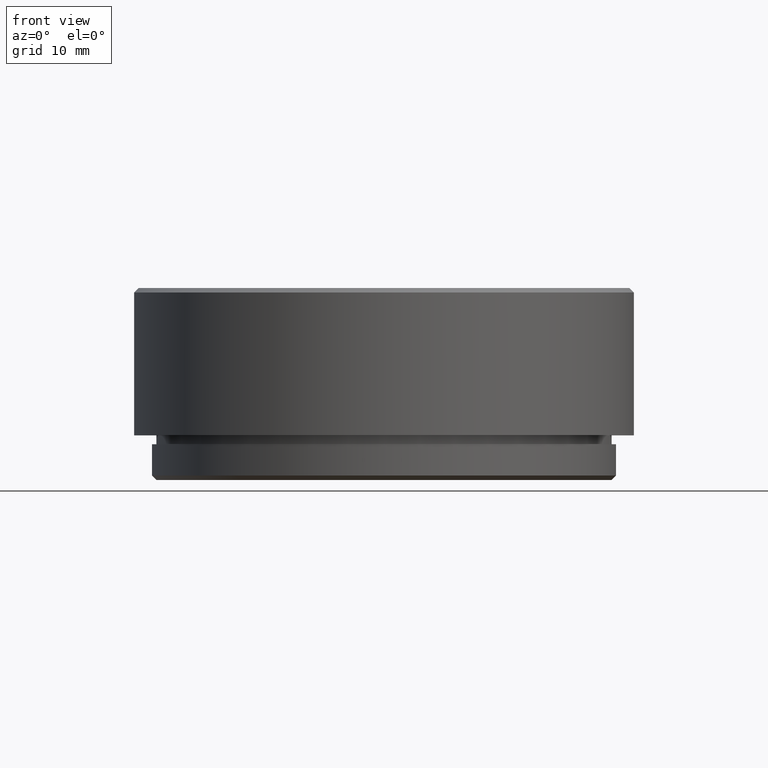
[diagram: clean part render]
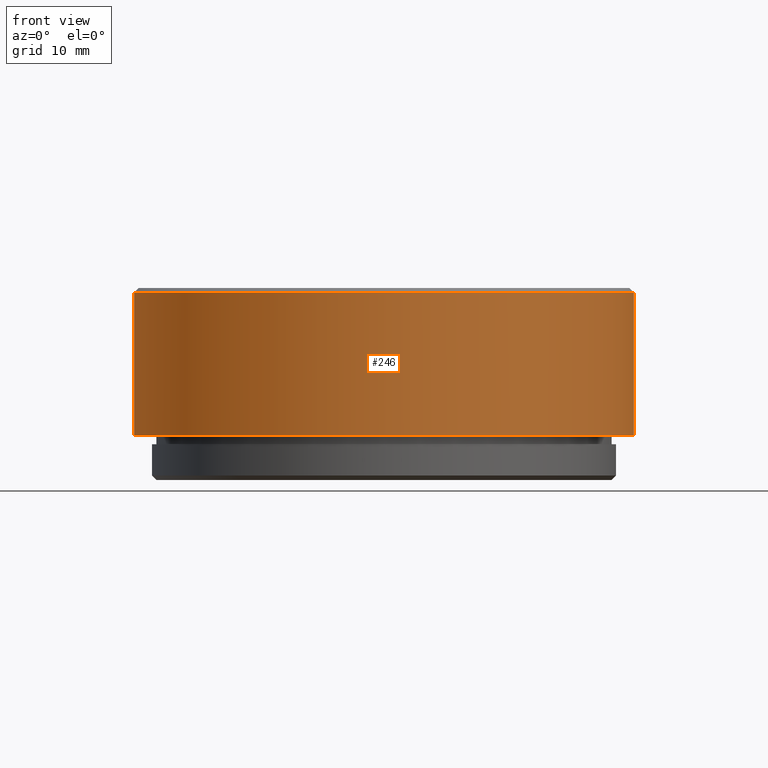
[diagram: same view with one face highlighted and labeled with its STEP entity id]
A machine part, front view. The second image highlights one B-rep face of the part: STEP entity #246.
In plain terms, the highlighted cylindrical surface (partial cylindrical patch) has radius 28 mm, axis along (-0, -0, -1).
Its self-contained STEP definition (entity closure, byte-faithful):
#26 = AXIS2_PLACEMENT_3D ( 'NONE', #687, #552, #951 ) ;
#38 = CARTESIAN_POINT ( 'NONE',  ( 28.00000000000000000, 3.429011037612589276E-15, 20.99999999999999289 ) ) ;
#40 = VECTOR ( 'NONE', #979, 1000.000000000000000 ) ;
#166 = DIRECTION ( 'NONE',  ( -1.000000000000000000, 0.000000000000000000, 0.000000000000000000 ) ) ;
#222 = CIRCLE ( 'NONE', #713, 28.00000000000000000 ) ;
#246 = ADVANCED_FACE ( 'NONE', ( #1272 ), #1014, .T. ) ;
#304 = EDGE_CURVE ( 'NONE', #1286, #1167, #810, .T. ) ;
#364 = DIRECTION ( 'NONE',  ( -0.000000000000000000, -0.000000000000000000, -1.000000000000000000 ) ) ;
#433 = EDGE_CURVE ( 'NONE', #1454, #1286, #1247, .T. ) ;
#496 = LINE ( 'NONE', #1612, #1303 ) ;
#534 = CARTESIAN_POINT ( 'NONE',  ( 28.00000000000000000, 3.429011037612589276E-15, 21.50000000000000000 ) ) ;
#537 = CARTESIAN_POINT ( 'NONE',  ( -28.00000000000000000, 0.000000000000000000, 20.99999999999999289 ) ) ;
#552 = DIRECTION ( 'NONE',  ( 0.000000000000000000, 0.000000000000000000, -1.000000000000000000 ) ) ;
#654 = ORIENTED_EDGE ( 'NONE', *, *, #433, .F. ) ;
#687 = CARTESIAN_POINT ( 'NONE',  ( 0.000000000000000000, 0.000000000000000000, 5.000000000000000000 ) ) ;
#713 = AXIS2_PLACEMENT_3D ( 'NONE', #832, #1626, #1608 ) ;
#810 = CIRCLE ( 'NONE', #26, 28.00000000000000000 ) ;
#820 = ORIENTED_EDGE ( 'NONE', *, *, #1563, .T. ) ;
#832 = CARTESIAN_POINT ( 'NONE',  ( 0.000000000000000000, 0.000000000000000000, 20.99999999999999289 ) ) ;
#905 = AXIS2_PLACEMENT_3D ( 'NONE', #1653, #1388, #166 ) ;
#951 = DIRECTION ( 'NONE',  ( -1.000000000000000000, 0.000000000000000000, 0.000000000000000000 ) ) ;
#979 = DIRECTION ( 'NONE',  ( -0.000000000000000000, -0.000000000000000000, -1.000000000000000000 ) ) ;
#996 = ORIENTED_EDGE ( 'NONE', *, *, #1082, .T. ) ;
#1014 = CYLINDRICAL_SURFACE ( 'NONE', #905, 28.00000000000000000 ) ;
#1076 = CARTESIAN_POINT ( 'NONE',  ( -28.00000000000000000, 0.000000000000000000, 5.000000000000000000 ) ) ;
#1082 = EDGE_CURVE ( 'NONE', #1340, #1167, #496, .T. ) ;
#1167 = VERTEX_POINT ( 'NONE', #1076 ) ;
#1247 = LINE ( 'NONE', #534, #40 ) ;
#1272 = FACE_OUTER_BOUND ( 'NONE', #1430, .T. ) ;
#1286 = VERTEX_POINT ( 'NONE', #1628 ) ;
#1303 = VECTOR ( 'NONE', #364, 1000.000000000000000 ) ;
#1340 = VERTEX_POINT ( 'NONE', #537 ) ;
#1388 = DIRECTION ( 'NONE',  ( -0.000000000000000000, -0.000000000000000000, -1.000000000000000000 ) ) ;
#1411 = ORIENTED_EDGE ( 'NONE', *, *, #304, .F. ) ;
#1430 = EDGE_LOOP ( 'NONE', ( #654, #820, #996, #1411 ) ) ;
#1454 = VERTEX_POINT ( 'NONE', #38 ) ;
#1563 = EDGE_CURVE ( 'NONE', #1454, #1340, #222, .T. ) ;
#1608 = DIRECTION ( 'NONE',  ( 1.000000000000000000, 0.000000000000000000, 0.000000000000000000 ) ) ;
#1612 = CARTESIAN_POINT ( 'NONE',  ( -28.00000000000000000, 0.000000000000000000, 21.50000000000000000 ) ) ;
#1626 = DIRECTION ( 'NONE',  ( 0.000000000000000000, 0.000000000000000000, -1.000000000000000000 ) ) ;
#1628 = CARTESIAN_POINT ( 'NONE',  ( 28.00000000000000000, 3.429011037612589276E-15, 5.000000000000000000 ) ) ;
#1653 = CARTESIAN_POINT ( 'NONE',  ( 0.000000000000000000, 0.000000000000000000, 21.50000000000000000 ) ) ;